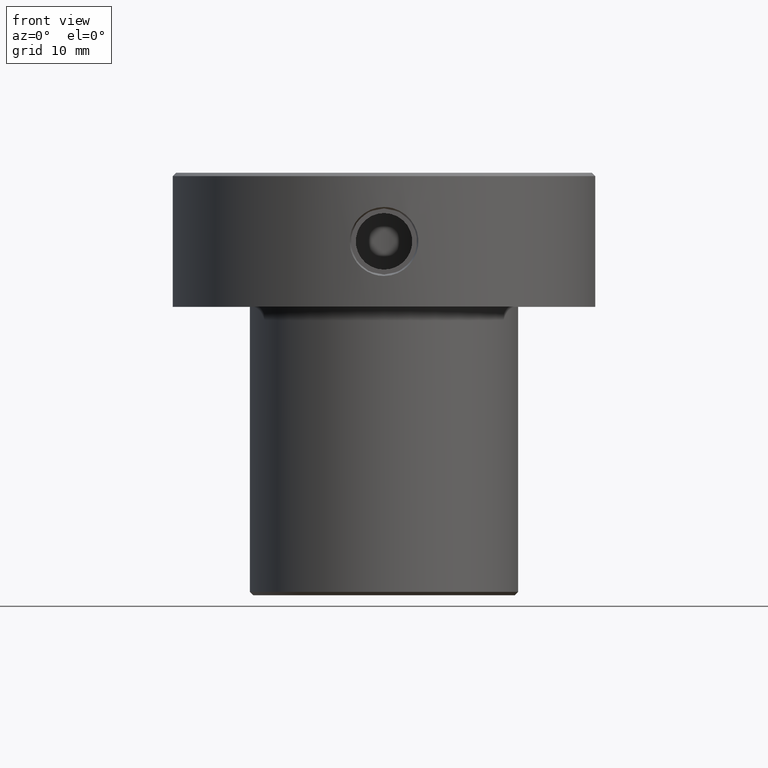
[diagram: clean part render]
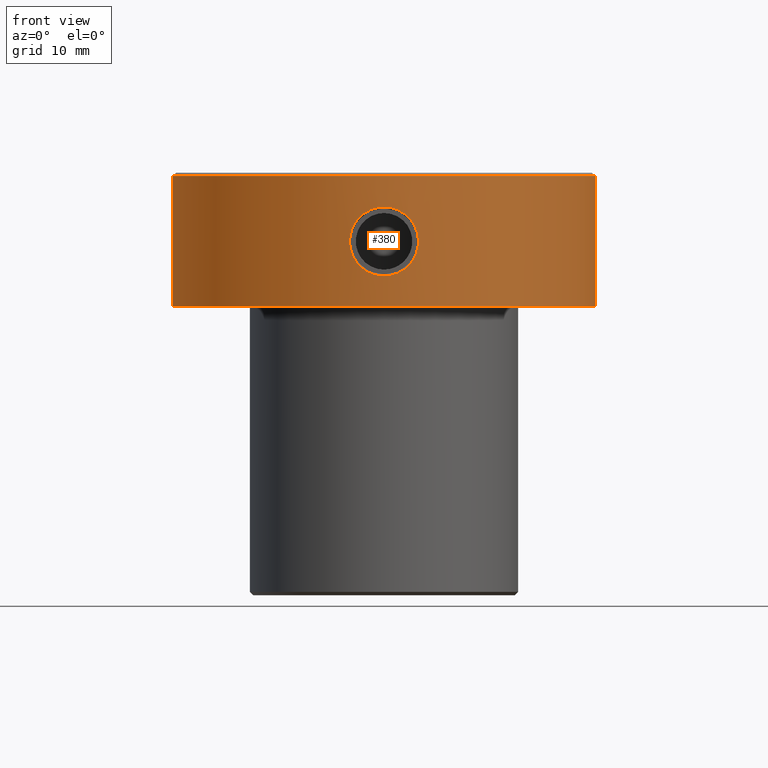
[diagram: same view with one face highlighted and labeled with its STEP entity id]
A machine part, front view. The second image highlights one B-rep face of the part: STEP entity #380.
In plain terms, the highlighted cylindrical surface (partial cylindrical patch) has radius 31.5 mm, axis along (-0, -0, 1).
Its self-contained STEP definition (entity closure, byte-faithful):
#5 = CARTESIAN_POINT ( 'NONE',  ( -31.50000000000000000, 3.857637417314162689E-15, 0.000000000000000000 ) ) ;
#13 = CIRCLE ( 'NONE', #599, 31.50000000000000000 ) ;
#14 = CARTESIAN_POINT ( 'NONE',  ( 4.966905104410310301, -31.10601603022917061, -8.917466357430962276 ) ) ;
#24 = CARTESIAN_POINT ( 'NONE',  ( 0.6698377073421232231, -31.49464258655239490, -15.36072116753062033 ) ) ;
#29 = CARTESIAN_POINT ( 'NONE',  ( 3.469453123382869688E-15, -31.50000000000000000, -15.39337299999999509 ) ) ;
#53 = VECTOR ( 'NONE', #99, 1000.000000000000000 ) ;
#65 = CARTESIAN_POINT ( 'NONE',  ( -4.451694874726374707, -31.18441232983012412, -7.670897753639112082 ) ) ;
#69 = DIRECTION ( 'NONE',  ( 1.000000000000000000, 0.000000000000000000, 0.000000000000000000 ) ) ;
#74 = CARTESIAN_POINT ( 'NONE',  ( -5.098402914937243402, -31.08473478902125464, -10.91910798902401858 ) ) ;
#78 = DIRECTION ( 'NONE',  ( -0.000000000000000000, -0.000000000000000000, 1.000000000000000000 ) ) ;
#87 = CARTESIAN_POINT ( 'NONE',  ( -0.8401433878439314995, -31.48922772712464635, -15.32676051504670411 ) ) ;
#93 = EDGE_CURVE ( 'NONE', #658, #942, #97, .T. ) ;
#97 = CIRCLE ( 'NONE', #443, 31.50000000000000000 ) ;
#99 = DIRECTION ( 'NONE',  ( -0.000000000000000000, -0.000000000000000000, 1.000000000000000000 ) ) ;
#104 = CARTESIAN_POINT ( 'NONE',  ( 4.967041030467374441, -31.10599401816686793, -11.58183657534789646 ) ) ;
#107 = DIRECTION ( 'NONE',  ( -0.000000000000000000, -0.000000000000000000, 1.000000000000000000 ) ) ;
#111 = CARTESIAN_POINT ( 'NONE',  ( 5.130657840474292186, -31.07935569053308811, -9.909852961027835860 ) ) ;
#125 = CARTESIAN_POINT ( 'NONE',  ( 0.3353453576430204808, -31.49999999999999289, -15.39337299999999864 ) ) ;
#128 = CARTESIAN_POINT ( 'NONE',  ( 0.000000000000000000, 0.000000000000000000, -0.5000000000000005551 ) ) ;
#133 = CARTESIAN_POINT ( 'NONE',  ( 5.122465983066386563, -31.08071141821243089, -10.58768122473574103 ) ) ;
#159 = CARTESIAN_POINT ( 'NONE',  ( 4.867664789323016272, -31.12190052561226139, -8.589729848178704330 ) ) ;
#163 = CARTESIAN_POINT ( 'NONE',  ( -4.612496138182724970, -31.16073865657662623, -7.972473504924429299 ) ) ;
#175 = CARTESIAN_POINT ( 'NONE',  ( 0.000000000000000000, 0.000000000000000000, 0.000000000000000000 ) ) ;
#179 = CARTESIAN_POINT ( 'NONE',  ( -0.1675630498953195602, -31.49999999999999289, -15.39337299999998798 ) ) ;
#182 = CARTESIAN_POINT ( 'NONE',  ( -3.390222829753240852, -31.31794788186031298, -14.12535131313222081 ) ) ;
#202 = CARTESIAN_POINT ( 'NONE',  ( 1.336415367724157477, -31.47340445795097352, -15.22751008621549573 ) ) ;
#206 = ORIENTED_EDGE ( 'NONE', *, *, #941, .F. ) ;
#207 = CARTESIAN_POINT ( 'NONE',  ( 4.869390834944940849, -31.12163417354981831, -11.90570945242667555 ) ) ;
#216 = DIRECTION ( 'NONE',  ( 1.000000000000000000, 0.000000000000000000, 0.000000000000000000 ) ) ;
#239 = CARTESIAN_POINT ( 'NONE',  ( -3.127390646994665957, -31.34463980152736440, -6.169051752806164579 ) ) ;
#253 = CARTESIAN_POINT ( 'NONE',  ( 0.3366100973040669353, -31.50000000000000000, -5.106626999999975602 ) ) ;
#255 = ORIENTED_EDGE ( 'NONE', *, *, #1090, .F. ) ;
#258 = CARTESIAN_POINT ( 'NONE',  ( 3.133698975952346366, -31.34501010464462567, -6.163299309523029734 ) ) ;
#266 = CARTESIAN_POINT ( 'NONE',  ( -0.6714663925119007670, -31.49329104503225452, -15.35194756755903001 ) ) ;
#274 = CARTESIAN_POINT ( 'NONE',  ( -4.454254645784785360, -31.18405202307143753, -12.82489809447089613 ) ) ;
#281 = CARTESIAN_POINT ( 'NONE',  ( -1.335606384995722706, -31.47340735662041666, -15.22752269674729142 ) ) ;
#293 = CARTESIAN_POINT ( 'NONE',  ( 3.469453123382869688E-15, -31.50000000000000000, -15.39337299999999509 ) ) ;
#295 = EDGE_LOOP ( 'NONE', ( #255, #662, #1242, #928 ) ) ;
#342 = CARTESIAN_POINT ( 'NONE',  ( 3.392932673877273153, -31.31763777728264486, -6.377295305653123414 ) ) ;
#353 = CARTESIAN_POINT ( 'NONE',  ( -1.334519425968438533, -31.47343701898237711, -5.272292468420128664 ) ) ;
#355 = EDGE_CURVE ( 'NONE', #556, #658, #1153, .T. ) ;
#360 = CARTESIAN_POINT ( 'NONE',  ( -3.868766672552418129, -31.26243386244336619, -6.854851957125377204 ) ) ;
#373 = CARTESIAN_POINT ( 'NONE',  ( -4.614207509948417218, -31.16048382452505550, -12.52398808746668379 ) ) ;
#380 = ADVANCED_FACE ( 'NONE', ( #834, #912 ), #1125, .T. ) ;
#381 = CARTESIAN_POINT ( 'NONE',  ( -4.080978841796701673, -31.23509399249391549, -13.38556862998713903 ) ) ;
#386 = CARTESIAN_POINT ( 'NONE',  ( -1.655634719621374096, -31.45799249277633791, -15.12984270095671846 ) ) ;
#398 = LINE ( 'NONE', #5, #520 ) ;
#408 = DIRECTION ( 'NONE',  ( 1.000000000000000000, 0.000000000000000000, 0.000000000000000000 ) ) ;
#418 = CARTESIAN_POINT ( 'NONE',  ( 1.657396898507847105, -31.45789325696875238, -15.12919500493183378 ) ) ;
#433 = CARTESIAN_POINT ( 'NONE',  ( -9.772567479587839719E-14, -31.50000000000020961, -5.106626999998714389 ) ) ;
#441 = VERTEX_POINT ( 'NONE', #293 ) ;
#442 = CARTESIAN_POINT ( 'NONE',  ( 4.173563541805559218, -31.22243177385723101, -7.253570568143165254 ) ) ;
#443 = AXIS2_PLACEMENT_3D ( 'NONE', #128, #842, #408 ) ;
#482 = CARTESIAN_POINT ( 'NONE',  ( 5.130837226589495259, -31.07932607631504496, -10.41733963596846557 ) ) ;
#487 = CARTESIAN_POINT ( 'NONE',  ( 5.097562165116699795, -31.08487155453376261, -9.576089725178830392 ) ) ;
#502 = CARTESIAN_POINT ( 'NONE',  ( 31.50000000000000000, 0.000000000000000000, -20.00000000000000000 ) ) ;
#509 = CARTESIAN_POINT ( 'NONE',  ( 4.453239858586508504, -31.18418962309101161, -12.82638164466412967 ) ) ;
#510 = CARTESIAN_POINT ( 'NONE',  ( 3.469453123382869688E-15, -31.50000000000000000, -15.39337299999999509 ) ) ;
#520 = VECTOR ( 'NONE', #107, 1000.000000000000000 ) ;
#521 = CARTESIAN_POINT ( 'NONE',  ( 1.331074546105040390, -31.47228005148380703, -5.279836242022051707 ) ) ;
#527 = CARTESIAN_POINT ( 'NONE',  ( 2.275950067283664335, -31.41919755906950229, -5.628144779923813346 ) ) ;
#536 = CARTESIAN_POINT ( 'NONE',  ( 1.654260685751130833, -31.45694824152356261, -5.378348575345545335 ) ) ;
#552 = CARTESIAN_POINT ( 'NONE',  ( -0.6770406131236045288, -31.49444071410571055, -5.140538297664423162 ) ) ;
#556 = VERTEX_POINT ( 'NONE', #502 ) ;
#588 = CARTESIAN_POINT ( 'NONE',  ( 2.576464478240120037, -31.39570636234278922, -14.71060931308867126 ) ) ;
#599 = AXIS2_PLACEMENT_3D ( 'NONE', #1061, #888, #216 ) ;
#610 = CARTESIAN_POINT ( 'NONE',  ( 4.610980735617624227, -31.16096817160007149, -12.53107147698502288 ) ) ;
#626 = CARTESIAN_POINT ( 'NONE',  ( 4.610983382438159417, -31.16096412298885809, -7.969321119021823385 ) ) ;
#628 = ORIENTED_EDGE ( 'NONE', *, *, #868, .F. ) ;
#633 = CARTESIAN_POINT ( 'NONE',  ( -5.089515053184927140, -31.08612417337664269, -9.577531140353670480 ) ) ;
#638 = CARTESIAN_POINT ( 'NONE',  ( -2.576827999614311970, -31.39566229856551161, -5.789751088459638595 ) ) ;
#642 = CARTESIAN_POINT ( 'NONE',  ( -5.130717678206083932, -31.07934581213399738, -10.08065437731778324 ) ) ;
#650 = CARTESIAN_POINT ( 'NONE',  ( -0.3353667130378119587, -31.49866310069631581, -15.38516502314590717 ) ) ;
#658 = VERTEX_POINT ( 'NONE', #826 ) ;
#662 = ORIENTED_EDGE ( 'NONE', *, *, #774, .T. ) ;
#686 = CARTESIAN_POINT ( 'NONE',  ( 4.082377604487185785, -31.23490388621969061, -13.38350829592921087 ) ) ;
#708 = CARTESIAN_POINT ( 'NONE',  ( 3.866415528860177364, -31.26272087822797729, -13.64775127927988940 ) ) ;
#712 = B_SPLINE_CURVE_WITH_KNOTS ( 'NONE', 3,
 ( #29, #125, #24, #202, #418, #795, #588, #1188, #1175, #708, #686, #509, #610, #207, #104, #996, #972, #133, #482, #111, #487, #14, #159, #626, #809, #442, #915, #1103, #825, #342, #258, #1029, #527, #909, #536, #521, #1011, #924, #253, #813 ),
 .UNSPECIFIED., .F., .F.,
 ( 4, 2, 2, 2, 2, 2, 2, 2, 2, 2, 2, 2, 2, 2, 2, 2, 2, 2, 2, 4 ),
 ( 0.004162008923113693151, 0.005167744192718995433, 0.006173479462324296847, 0.007179214731929599996, 0.008184950001534902278, 0.009190685271140204560, 0.01019642054074550858, 0.01120215581035080912, 0.01170502344515346113, 0.01220789107995611314, 0.01321362634956141716, 0.01421936161916671944, 0.01522509688877202345, 0.01572796452357467373, 0.01623083215837732574, 0.01723656742798263322, 0.01824230269758793724, 0.01874517033239058925, 0.01924803796719324472, 0.02025377323679854874 ),
 .UNSPECIFIED. ) ;
#720 = CARTESIAN_POINT ( 'NONE',  ( -2.280086928615740138, -31.41893068276825574, -5.629928619322755345 ) ) ;
#734 = CARTESIAN_POINT ( 'NONE',  ( -2.993104610847331593, -31.35778592654167696, -6.069120576231695097 ) ) ;
#754 = CARTESIAN_POINT ( 'NONE',  ( -3.866491077670896281, -31.26272088466694399, -13.64782522884890703 ) ) ;
#774 = EDGE_CURVE ( 'NONE', #857, #556, #13, .T. ) ;
#775 = CARTESIAN_POINT ( 'NONE',  ( -31.50000000000000000, 3.857637417314162689E-15, -20.00000000000000000 ) ) ;
#795 = CARTESIAN_POINT ( 'NONE',  ( 2.275906060090903793, -31.41920215810174000, -14.87188786386862738 ) ) ;
#799 = VERTEX_POINT ( 'NONE', #1070 ) ;
#809 = CARTESIAN_POINT ( 'NONE',  ( 4.453635683173367887, -31.18414089315583837, -7.674024176918996076 ) ) ;
#813 = CARTESIAN_POINT ( 'NONE',  ( -9.772567479587839719E-14, -31.50000000000020961, -5.106626999998714389 ) ) ;
#825 = CARTESIAN_POINT ( 'NONE',  ( 3.746879213934935837, -31.27658873943607531, -6.732282321489491572 ) ) ;
#826 = CARTESIAN_POINT ( 'NONE',  ( 31.50000000000000000, 0.000000000000000000, -0.5000000000000005551 ) ) ;
#832 = CARTESIAN_POINT ( 'NONE',  ( -4.965651398854145526, -31.10621741704731136, -8.912339386753414416 ) ) ;
#834 = FACE_OUTER_BOUND ( 'NONE', #295, .T. ) ;
#842 = DIRECTION ( 'NONE',  ( 0.000000000000000000, 0.000000000000000000, -1.000000000000000000 ) ) ;
#853 = CARTESIAN_POINT ( 'NONE',  ( -2.275449511140111625, -31.41924167644154053, -14.87216287977717144 ) ) ;
#857 = VERTEX_POINT ( 'NONE', #775 ) ;
#868 = EDGE_CURVE ( 'NONE', #441, #799, #712, .T. ) ;
#888 = DIRECTION ( 'NONE',  ( -0.000000000000000000, -0.000000000000000000, 1.000000000000000000 ) ) ;
#909 = CARTESIAN_POINT ( 'NONE',  ( 1.812282648736991186, -31.44820523642388821, -5.435232141050023280 ) ) ;
#912 = FACE_BOUND ( 'NONE', #1053, .T. ) ;
#915 = CARTESIAN_POINT ( 'NONE',  ( 4.072356555082452090, -31.23583604059677299, -7.116759613591058020 ) ) ;
#920 = AXIS2_PLACEMENT_3D ( 'NONE', #175, #78, #69 ) ;
#924 = CARTESIAN_POINT ( 'NONE',  ( 0.6701198474174928643, -31.49460617425014419, -5.139513848346278557 ) ) ;
#928 = ORIENTED_EDGE ( 'NONE', *, *, #93, .T. ) ;
#931 = CARTESIAN_POINT ( 'NONE',  ( -3.386887148940125769, -31.31766293941403489, -6.382778049131897724 ) ) ;
#941 = EDGE_CURVE ( 'NONE', #799, #441, #1054, .T. ) ;
#942 = VERTEX_POINT ( 'NONE', #1170 ) ;
#950 = CARTESIAN_POINT ( 'NONE',  ( -3.132072014495783208, -31.34514232080539387, -14.33762505908508444 ) ) ;
#958 = CARTESIAN_POINT ( 'NONE',  ( 31.50000000000000000, 0.000000000000000000, 0.000000000000000000 ) ) ;
#972 = CARTESIAN_POINT ( 'NONE',  ( 5.089441580894637163, -31.08613620900053220, -10.92300633721116832 ) ) ;
#996 = CARTESIAN_POINT ( 'NONE',  ( 5.064819551378900719, -31.09017036019769264, -11.08896700139191793 ) ) ;
#1011 = CARTESIAN_POINT ( 'NONE',  ( 1.165729546598521571, -31.47885630537491153, -5.238291229756740996 ) ) ;
#1029 = CARTESIAN_POINT ( 'NONE',  ( 2.571297194215712789, -31.39614878406548470, -5.786216701329178314 ) ) ;
#1033 = CARTESIAN_POINT ( 'NONE',  ( -4.966712007347240387, -31.10604798142800220, -11.58406843877422432 ) ) ;
#1040 = CARTESIAN_POINT ( 'NONE',  ( -2.576434490117962550, -31.39569727739237948, -14.71050425106655624 ) ) ;
#1053 = EDGE_LOOP ( 'NONE', ( #628, #206 ) ) ;
#1054 = B_SPLINE_CURVE_WITH_KNOTS ( 'NONE', 3,
 ( #433, #1195, #552, #353, #1213, #720, #638, #734, #239, #931, #1109, #360, #1095, #65, #163, #1199, #832, #1220, #633, #1115, #642, #1227, #74, #1033, #1243, #373, #274, #381, #754, #182, #950, #1040, #853, #386, #281, #87, #266, #650, #179, #510 ),
 .UNSPECIFIED., .F., .F.,
 ( 4, 2, 2, 2, 2, 2, 2, 2, 2, 2, 2, 2, 2, 2, 2, 2, 2, 2, 2, 4 ),
 ( 0.02025377323679855221, 0.02125885092952007824, 0.02226392862224160080, 0.02326900631496312682, 0.02377154516132388984, 0.02427408400768465285, 0.02527916170040617888, 0.02628423939312770491, 0.02728931708584923094, 0.02779185593220999048, 0.02829439477857075003, 0.02929947247129226565, 0.03030455016401378127, 0.03130962785673530036, 0.03231470554945681251, 0.03331978324217832466, 0.03432486093489984375, 0.03532993862762136283, 0.03583247747398211891, 0.03633501632034287498 ),
 .UNSPECIFIED. ) ;
#1061 = CARTESIAN_POINT ( 'NONE',  ( 0.000000000000000000, 0.000000000000000000, -20.00000000000000000 ) ) ;
#1070 = CARTESIAN_POINT ( 'NONE',  ( -9.772567479587839719E-14, -31.50000000000020961, -5.106626999998714389 ) ) ;
#1090 = EDGE_CURVE ( 'NONE', #857, #942, #398, .T. ) ;
#1095 = CARTESIAN_POINT ( 'NONE',  ( -4.080131788154743866, -31.23519944238895718, -7.113521688492904893 ) ) ;
#1103 = CARTESIAN_POINT ( 'NONE',  ( 3.859207426211678449, -31.26288628882880616, -6.856458993284471504 ) ) ;
#1109 = CARTESIAN_POINT ( 'NONE',  ( -3.512639453559862623, -31.30376408216540440, -6.497194538890540549 ) ) ;
#1115 = CARTESIAN_POINT ( 'NONE',  ( -5.122515217600781767, -31.08070329713656577, -9.913028021884798591 ) ) ;
#1125 = CYLINDRICAL_SURFACE ( 'NONE', #920, 31.50000000000000000 ) ;
#1153 = LINE ( 'NONE', #958, #53 ) ;
#1170 = CARTESIAN_POINT ( 'NONE',  ( -31.50000000000000000, 3.857637417314162689E-15, -0.5000000000000005551 ) ) ;
#1175 = CARTESIAN_POINT ( 'NONE',  ( 3.392577882394762323, -31.31768352007677336, -14.12313902032865975 ) ) ;
#1188 = CARTESIAN_POINT ( 'NONE',  ( 3.134681991975262427, -31.34489298127002144, -14.33574776624093161 ) ) ;
#1195 = CARTESIAN_POINT ( 'NONE',  ( -0.3363900125311793943, -31.50000000000000711, -5.106627000000005800 ) ) ;
#1199 = CARTESIAN_POINT ( 'NONE',  ( -4.868424305443068256, -31.12178013916284414, -8.592074121464550629 ) ) ;
#1213 = CARTESIAN_POINT ( 'NONE',  ( -1.655205305049651354, -31.45804026077873772, -5.369816319215269473 ) ) ;
#1220 = CARTESIAN_POINT ( 'NONE',  ( -5.064493604089504331, -31.09022384105695735, -9.408808797311811745 ) ) ;
#1227 = CARTESIAN_POINT ( 'NONE',  ( -5.130896919631678266, -31.07931622180228359, -10.58317388585338037 ) ) ;
#1242 = ORIENTED_EDGE ( 'NONE', *, *, #355, .T. ) ;
#1243 = CARTESIAN_POINT ( 'NONE',  ( -4.869437043423324063, -31.12162023422767021, -11.90486274772561437 ) ) ;